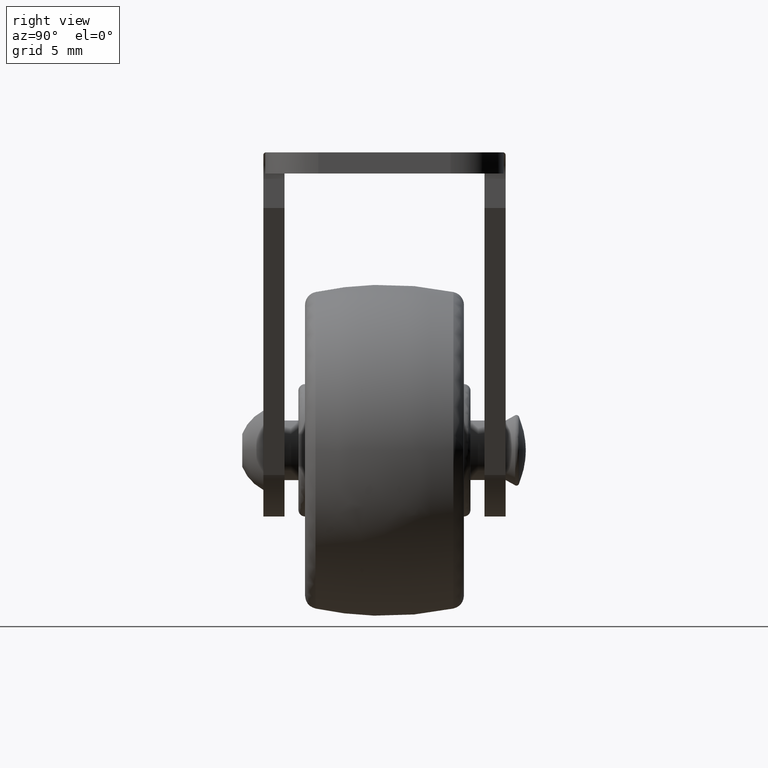
[diagram: clean part render]
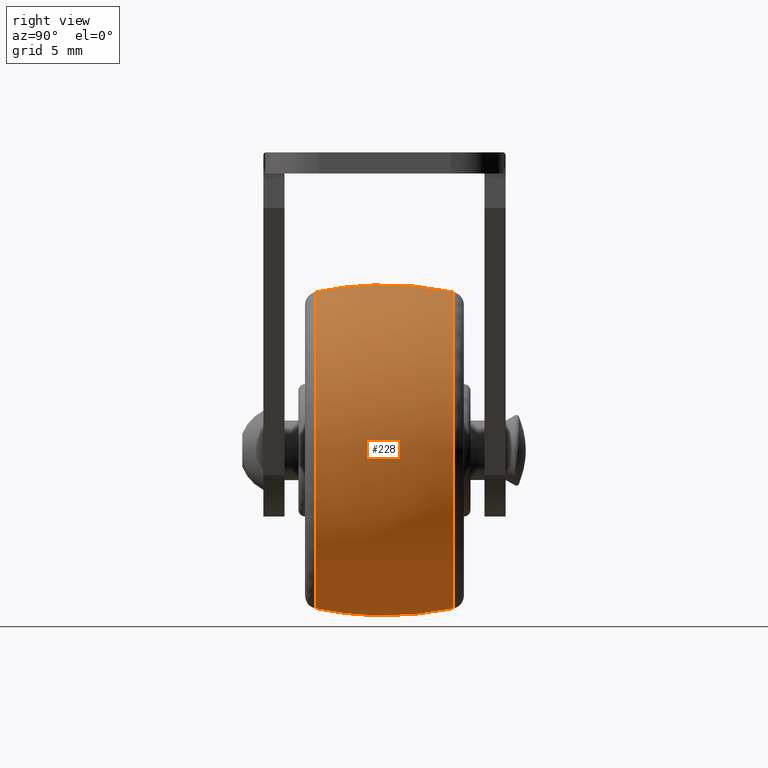
[diagram: same view with one face highlighted and labeled with its STEP entity id]
A machine part, right view. The second image highlights one B-rep face of the part: STEP entity #228.
In plain terms, the highlighted face is a freeform B-spline surface patch.
Its self-contained STEP definition (entity closure, byte-faithful):
#228=ADVANCED_FACE('',(#1046),#1045,.T.);
#1045=( BOUNDED_SURFACE() B_SPLINE_SURFACE( 2,2,((#1763,#1764,#1765,#1766,#1767),(#1768,#1769,#1770,#1771,#1772),(#1773,#1774,#1775,#1776,#1777)), .UNSPECIFIED.,.F.,.F.,.F.) B_SPLINE_SURFACE_WITH_KNOTS((3,3),(3,2,3),(-2.09870592328E-01,2.09870728738E-01),(0.00000000000E+00,1.57079632679E+00,3.14159265359E+00), .UNSPECIFIED. ) GEOMETRIC_REPRESENTATION_ITEM() RATIONAL_B_SPLINE_SURFACE(((1.00000000000E+00,7.07106781187E-01,1.00000000000E+00,7.07106781187E-01,1.00000000000E+00),(9.78057868636E-01,6.91591351305E-01,9.78057868636E-01,6.91591351305E-01,9.78057868636E-01),(1.00000000000E+00,7.07106781187E-01,1.00000000000E+00,7.07106781187E-01,1.00000000000E+00))) REPRESENTATION_ITEM('') SURFACE() );
#1046=FACE_OUTER_BOUND('',#1778,.T.);
#1763=CARTESIAN_POINT('',(1.46358180207E-15,5.20833333493E+00,1.19514470711E+01));
#1764=CARTESIAN_POINT('',(1.19514470711E+01,5.20833333493E+00,1.19514470711E+01));
#1765=CARTESIAN_POINT('',(1.19514470711E+01,5.20833333493E+00,-1.46358180207E-15));
#1766=CARTESIAN_POINT('',(1.19514470711E+01,5.20833333493E+00,-1.19514470711E+01));
#1767=CARTESIAN_POINT('',(-1.46358180207E-15,5.20833333493E+00,-1.19514470711E+01));
#1768=CARTESIAN_POINT('',(1.59944118267E-15,-1.74337049819E-06,1.30608597422E+01));
#1769=CARTESIAN_POINT('',(1.30608597422E+01,-1.74337049819E-06,1.30608597422E+01));
#1770=CARTESIAN_POINT('',(1.30608597422E+01,-1.74337049819E-06,-1.59944118267E-15));
#1771=CARTESIAN_POINT('',(1.30608597422E+01,-1.74337049819E-06,-1.30608597422E+01));
#1772=CARTESIAN_POINT('',(-1.59944118267E-15,-1.74337049819E-06,-1.30608597422E+01));
#1773=CARTESIAN_POINT('',(1.46358171506E-15,-5.20833667034E+00,1.19514463607E+01));
#1774=CARTESIAN_POINT('',(1.19514463607E+01,-5.20833667034E+00,1.19514463607E+01));
#1775=CARTESIAN_POINT('',(1.19514463607E+01,-5.20833667034E+00,-1.46358171506E-15));
#1776=CARTESIAN_POINT('',(1.19514463607E+01,-5.20833667034E+00,-1.19514463607E+01));
#1777=CARTESIAN_POINT('',(-1.46358171506E-15,-5.20833667034E+00,-1.19514463607E+01));
#1778=EDGE_LOOP('',(#2319,#2320,#2321,#2322));
#2319=ORIENTED_EDGE('',*,*,#2559,.T.);
#2320=ORIENTED_EDGE('',*,*,#2560,.T.);
#2321=ORIENTED_EDGE('',*,*,#2558,.F.);
#2322=ORIENTED_EDGE('',*,*,#2561,.F.);
#2558=EDGE_CURVE('',#3888,#3881,#3901,.T.);
#2559=EDGE_CURVE('',#3907,#3908,#3909,.T.);
#2560=EDGE_CURVE('',#3908,#3881,#3915,.T.);
#2561=EDGE_CURVE('',#3907,#3888,#3921,.T.);
#3881=VERTEX_POINT('',#4797);
#3888=VERTEX_POINT('',#4801);
#3901=CIRCLE('',#4813,1.19514463607E+01);
#3907=VERTEX_POINT('',#4814);
#3908=VERTEX_POINT('',#4815);
#3909=CIRCLE('',#4819,1.19514468825E+01);
#3915=(BOUNDED_CURVE() B_SPLINE_CURVE(2,(#4820,#4821,#4822),.UNSPECIFIED.,.F.,.F.) B_SPLINE_CURVE_WITH_KNOTS((3,3),(-2.09870592328E-01,2.09870728738E-01),.UNSPECIFIED.) CURVE() GEOMETRIC_REPRESENTATION_ITEM() RATIONAL_B_SPLINE_CURVE((1.00000000000E+00,9.78057868636E-01,1.00000000000E+00)) REPRESENTATION_ITEM('') );
#3921=(BOUNDED_CURVE() B_SPLINE_CURVE(2,(#4823,#4824,#4825),.UNSPECIFIED.,.F.,.F.) B_SPLINE_CURVE_WITH_KNOTS((3,3),(-2.09870592328E-01,2.09870728738E-01),.UNSPECIFIED.) CURVE() GEOMETRIC_REPRESENTATION_ITEM() RATIONAL_B_SPLINE_CURVE((1.00000000000E+00,9.78057868636E-01,1.00000000000E+00)) REPRESENTATION_ITEM('') );
#4797=CARTESIAN_POINT('',(0.00000000000E+00,-5.20833667034E+00,1.19514463607E+01));
#4801=CARTESIAN_POINT('',(0.00000000000E+00,-5.20833667034E+00,-1.19514463607E+01));
#4810=CARTESIAN_POINT('',(0.00000000000E+00,-5.20833667034E+00,-8.06199264573E-16));
#4811=DIRECTION('',(0.00000000000E+00,-1.00000000000E+00,-0.00000000000E+00));
#4812=DIRECTION('',(-1.22460635382E-16,0.00000000000E+00,-1.00000000000E+00));
#4813=AXIS2_PLACEMENT_3D('',#4810,#4811,#4812);
#4814=CARTESIAN_POINT('',(0.00000000000E+00,5.20833333493E+00,-1.19514468825E+01));
#4815=CARTESIAN_POINT('',(-5.92118946467E-16,5.20833333493E+00,1.19514468825E+01));
#4816=CARTESIAN_POINT('',(0.00000000000E+00,5.20833333493E+00,-8.06199264573E-16));
#4817=DIRECTION('',(0.00000000000E+00,-1.00000000000E+00,-0.00000000000E+00));
#4818=DIRECTION('',(-1.22460635382E-16,0.00000000000E+00,-1.00000000000E+00));
#4819=AXIS2_PLACEMENT_3D('',#4816,#4817,#4818);
#4820=CARTESIAN_POINT('',(1.46358180207E-15,5.20833333493E+00,1.19514470711E+01));
#4821=CARTESIAN_POINT('',(1.59944118267E-15,-1.74337049819E-06,1.30608597422E+01));
#4822=CARTESIAN_POINT('',(1.46358171506E-15,-5.20833667034E+00,1.19514463607E+01));
#4823=CARTESIAN_POINT('',(-1.46358180207E-15,5.20833333493E+00,-1.19514470711E+01));
#4824=CARTESIAN_POINT('',(-1.59944118267E-15,-1.74337049819E-06,-1.30608597422E+01));
#4825=CARTESIAN_POINT('',(-1.46358171506E-15,-5.20833667034E+00,-1.19514463607E+01));